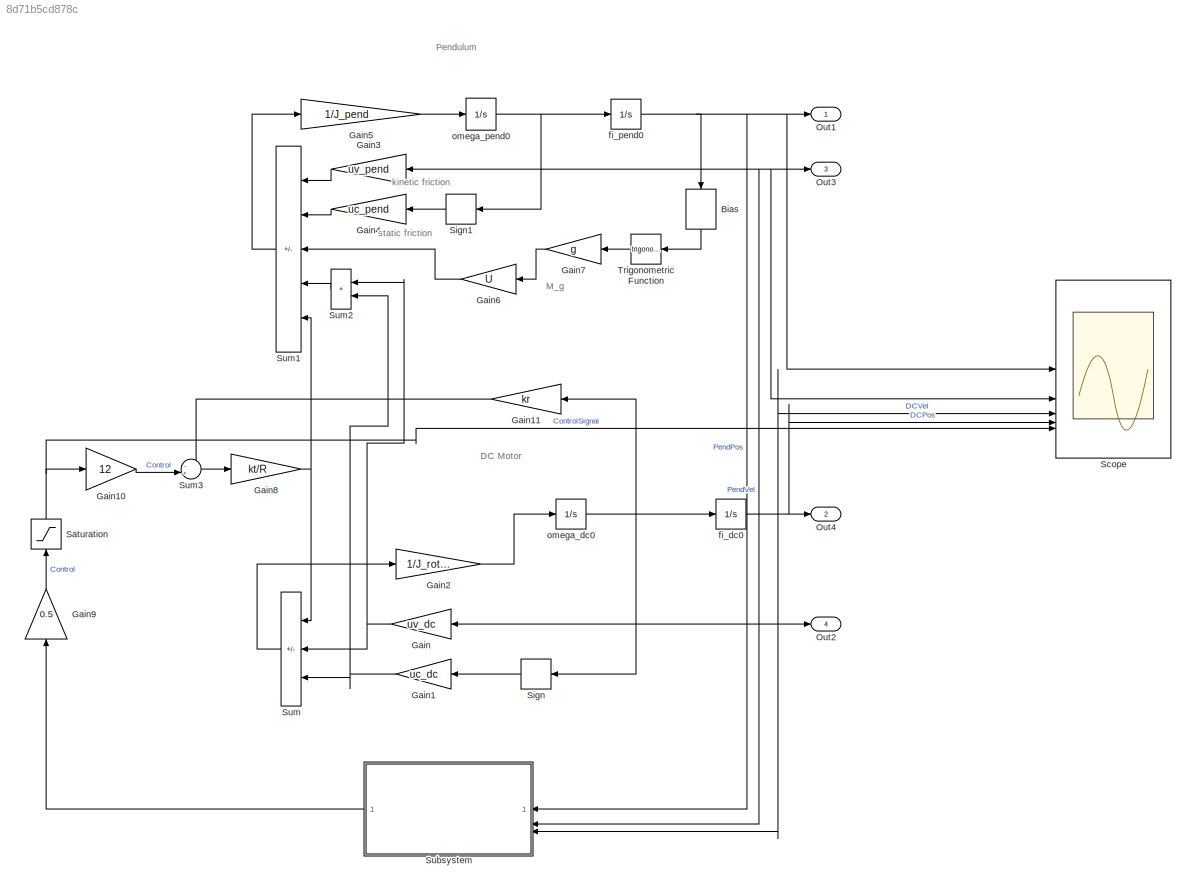
MODEL slx_8d71b5cd878c
KIND model
CONFIG AbsTol = auto
CONFIG EnableMultiTasking = off
CONFIG FixedStep = auto
CONFIG MaxStep = auto
CONFIG MinStep = auto
CONFIG RelTol = 1e-3
CONFIG SampleTimeConstraint = Unconstrained
CONFIG SolverName = ode3
CONFIG StartTime = 0.0
CONFIG StopTime = t(end)
BLOCK [Bias] Bias
  Bias = 0 % pi
  NameLocation = left
  SaturateOnIntegerOverflow = off
BLOCK [Gain] Gain
  Gain = uv_dc
  NameLocation = top
BLOCK [Gain] Gain1
  Gain = uc_dc
  NameLocation = top
BLOCK [Gain] Gain10
  Gain = 12
BLOCK [Gain] Gain11
  Gain = kr
BLOCK [Gain] Gain2
  Gain = 1/J_rotor
BLOCK [Gain] Gain3
  Gain = uv_pend
  NameLocation = top
BLOCK [Gain] Gain4
  Gain = uc_pend
  NameLocation = top
BLOCK [Gain] Gain5
  Gain = 1/J_pend
BLOCK [Gain] Gain6
  Gain = U
  NameLocation = top
BLOCK [Gain] Gain7
  Gain = g
  NameLocation = top
BLOCK [Gain] Gain8
  Gain = kt/R
BLOCK [Gain] Gain9
  Gain = 0.5
  NameLocation = right
BLOCK [Outport] Out1
  SignalName = PendPos_sim
  VectorParamsAs1DForOutWhenUnconnected = off
BLOCK [Outport] Out2
  Port = 4
  SignalName = DCVel_sim
  VectorParamsAs1DForOutWhenUnconnected = off
BLOCK [Outport] Out3
  Port = 3
  SignalName = PendVel_sim
  VectorParamsAs1DForOutWhenUnconnected = off
BLOCK [Outport] Out4
  Port = 2
  SignalName = DCPos_sim
  VectorParamsAs1DForOutWhenUnconnected = off
BLOCK [Saturate] Saturation
  LowerLimit = -1
  NameLocation = right
  UpperLimit = 1
BLOCK [Scope] Scope
  Floating = off
  NumInputPorts = 5
  ScopeSpecificationString = Simulink.scopes.TimeScopeBlockCfg('CurrentConfiguration', extmgr.ConfigurationSet(extmgr.Configuration('Core','General UI',true),extmgr.Configuration('Core','Source UI',true),extmgr.Configuration('Sources','WiredSimulink',true),extmgr.Configuration('Visuals','Time Domain',true,'SerializedDisplays',{struct('MinYLimReal','-0.33026','MaxYLimReal','0.59225','YLabelReal','','MinYLimMag','0.00000','MaxY...<+5561ch>
BLOCK [Signum] Sign
  NameLocation = top
  ZeroCross = off
BLOCK [Signum] Sign1
  NameLocation = top
  ZeroCross = off
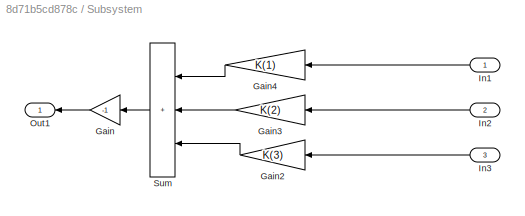
BLOCK [SubSystem] Subsystem
  NameLocation = top
BLOCK [Gain] Subsystem/Gain
  Gain = -1
  NameLocation = top
BLOCK [Gain] Subsystem/Gain2
  Gain = K(3)
  NameLocation = top
BLOCK [Gain] Subsystem/Gain3
  Gain = K(2)
  NameLocation = top
BLOCK [Gain] Subsystem/Gain4
  Gain = K(1)
  NameLocation = top
BLOCK [Inport] Subsystem/In1
  NameLocation = top
BLOCK [Inport] Subsystem/In2
  NameLocation = top
  Port = 2
BLOCK [Inport] Subsystem/In3
  NameLocation = top
  Port = 3
BLOCK [Outport] Subsystem/Out1
  NameLocation = top
  VectorParamsAs1DForOutWhenUnconnected = off
BLOCK [Sum] Subsystem/Sum
  IconShape = rectangular
  Inputs = +++
  NameLocation = top
BLOCK [Sum] Sum
  IconShape = rectangular
  Inputs = +--
  NameLocation = top
BLOCK [Sum] Sum1
  IconShape = rectangular
  Inputs = ---+-
  NameLocation = top
BLOCK [Sum] Sum2
  IconShape = rectangular
  NameLocation = top
BLOCK [Sum] Sum3
  Inputs = -+|
BLOCK [Trigonometry] Trigonometric Function
  NameLocation = top
BLOCK [Integrator] fi_dc0
  InitialCondition = fi_dc0
BLOCK [Integrator] fi_pend0
  InitialCondition = 0.5
BLOCK [Integrator] omega_dc0
  InitialCondition = omega_dc0
BLOCK [Integrator] omega_pend0
  InitialCondition = omega_pend0
ANNOTATION (root): DC Motor
ANNOTATION (root): Pendulum
ANNOTATION (root): M_g
ANNOTATION (root): kinetic friction
ANNOTATION (root): static friction
LINE Bias:1 -> Trigonometric Function:1
LINE Gain10:1 -> Sum3:2
LINE Gain11:1 -> Sum3:1
NET Gain1:1 -> Sum2:2, Sum:3
LINE Gain2:1 -> omega_dc0:1
LINE Gain3:1 -> Sum1:1
LINE Gain4:1 -> Sum1:2
LINE Gain5:1 -> omega_pend0:1
LINE Gain6:1 -> Sum1:3
LINE Gain7:1 -> Gain6:1
NET Gain8:1 -> Sum1:5, Sum:1
LINE Gain9:1 -> Saturation:1
NET Gain:1 -> Sum2:1, Sum:2
NET Saturation:1 -> Gain10:1, Scope:5
LINE Sign1:1 -> Gain4:1
LINE Sign:1 -> Gain1:1
LINE Subsystem/Gain2:1 -> Subsystem/Sum:3
LINE Subsystem/Gain3:1 -> Subsystem/Sum:2
LINE Subsystem/Gain4:1 -> Subsystem/Sum:1
LINE Subsystem/Gain:1 -> Subsystem/Out1:1
LINE Subsystem/In1:1 -> Subsystem/Gain4:1
LINE Subsystem/In2:1 -> Subsystem/Gain3:1
LINE Subsystem/In3:1 -> Subsystem/Gain2:1
LINE Subsystem/Sum:1 -> Subsystem/Gain:1
LINE Subsystem:1 -> Gain9:1
LINE Sum1:1 -> Gain5:1
LINE Sum2:1 -> Sum1:4
LINE Sum3:1 -> Gain8:1
LINE Sum:1 -> Gain2:1
LINE Trigonometric Function:1 -> Gain7:1
NET fi_dc0:1 -> Out4:1, Scope:4
NET fi_pend0:1 -> Bias:1, Out1:1, Scope:1, Subsystem:1
NET omega_dc0:1 -> Gain11:1, Gain:1, Out2:1, Scope:3, Sign:1, Subsystem:3, fi_dc0:1
NET omega_pend0:1 -> Gain3:1, Out3:1, Scope:2, Sign1:1, Subsystem:2, fi_pend0:1
note: NET lines group one-source signal fan-out (src -> all destinations, sorted); 1:1 wires keep LINE
